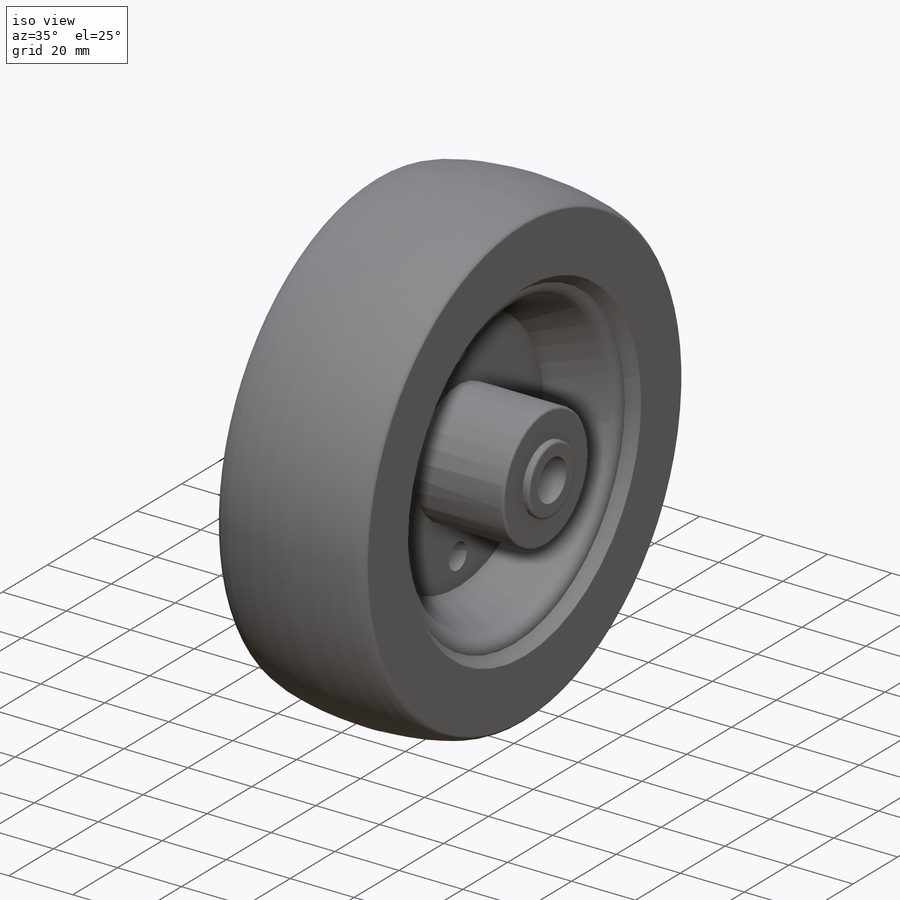
[diagram: iso view]
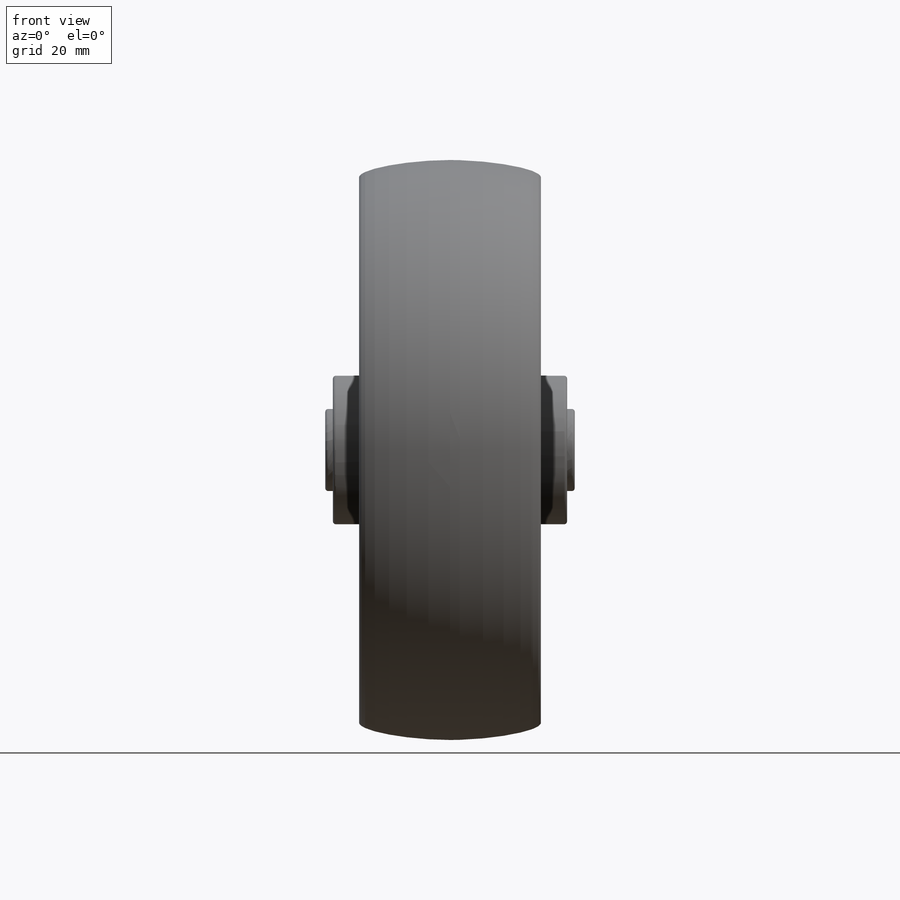
[diagram: front view]
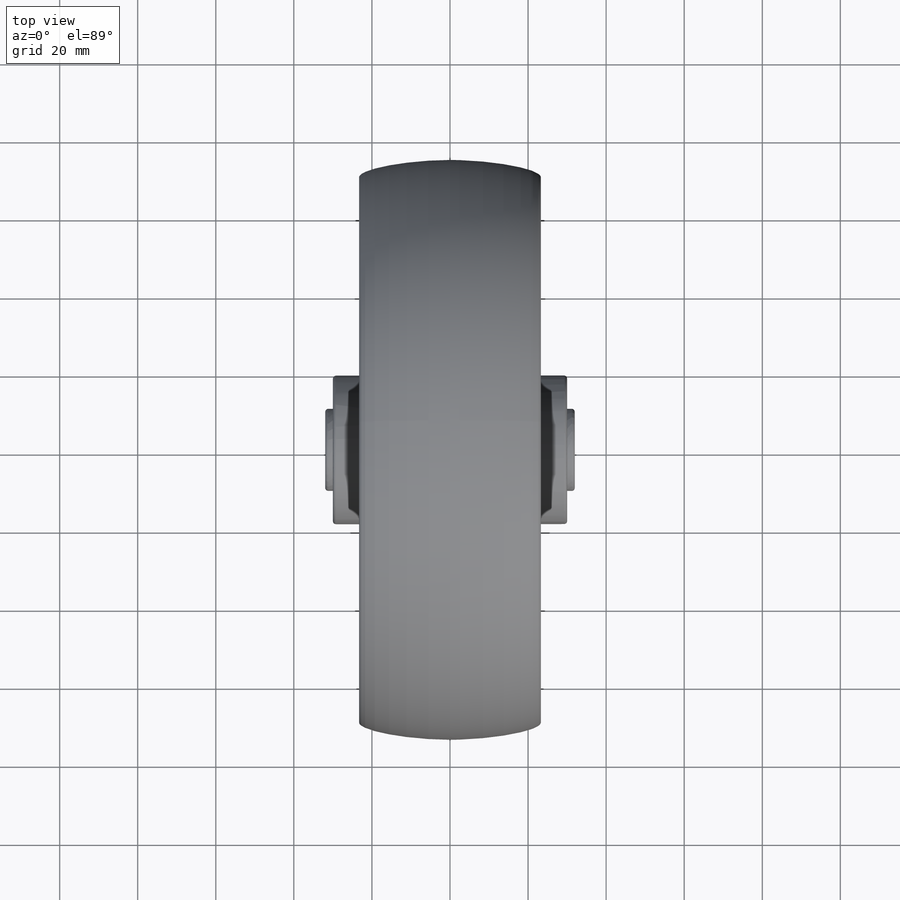
[diagram: top view]
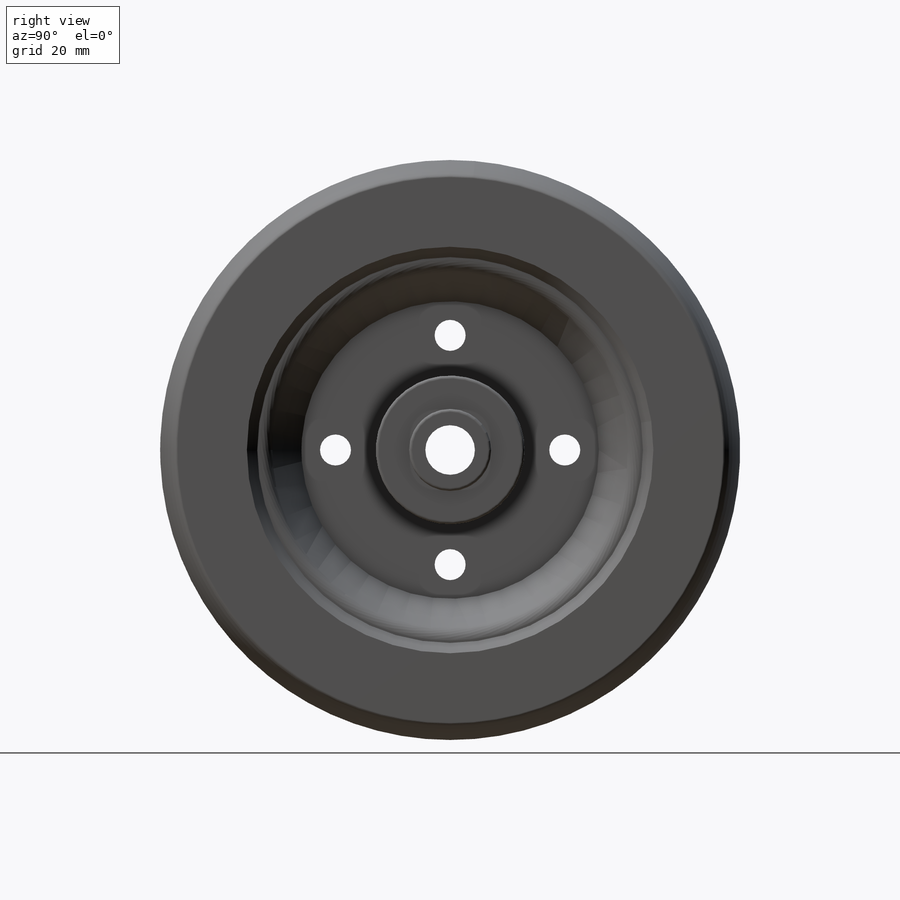
[diagram: right view]
SOLIDWORKS PART (.sldprt)
format: sldprt  version: not decoded by parser v0  size: 321,536 bytes
history: native  units: mm
features: sketch x6, mirror x2, extrude x2, cut_extrude x2, material x1, revolve x1, cut_revolve x1, fillet x1 (+11 scaffold rows collapsed)
feature tree (27):
  scaffold x11  (default folders/planes/origin — collapsed)
  material  "Material <not specified>"
  sketch  "Sketch5"  dims[c1.D1=74.295mm c1.D2=69.85mm c1.D3=~33.227897mm c2.D3=90.0deg c3.D3=46.5582mm]
  revolve  "Revolve1"  Angle=360deg
  sketch  "Sketch7"  dims[c1.D3=7.62mm c1.D7=3.556mm c1.D1=52.07mm c1.D2=4.1402mm c1.D4=38.1mm c1.D5=0.5349mm c2.D3=19.558mm c2.D5=20.828mm c2.D6=3.175mm]
  cut_revolve  "Cut-Revolve2"  Angle=360deg
  mirror  "Mirror1"
  sketch  "Sketch8"  dims[D1=38.1mm]
  extrude  "Boss-Extrude1"  Depth=27.5463mm
  sketch  "Sketch9"  dims[D1=21.0312mm]
  extrude  "Boss-Extrude2"  Depth=1.9558mm
  fillet  "Fillet4"  Radius=0.762mm
  mirror  "Mirror2"
  sketch  "Sketch10"  dims[D1=12.7mm]
  cut_extrude  "Cut-Extrude5"  [1 undecoded]
  sketch  "Sketch11"  dims[D2=7.9375mm D1=~29.36875mm D3=4.0]
  cut_extrude  "Cut-Extrude6"  [1 undecoded]
decode coverage: 11 of 15 modeling features carry decoded parameters
note: ~ marks probable driven/reference dimensions
note: 2 parameter values undecoded
note: suppression state not decoded; provenance and decode notes live in map.json
